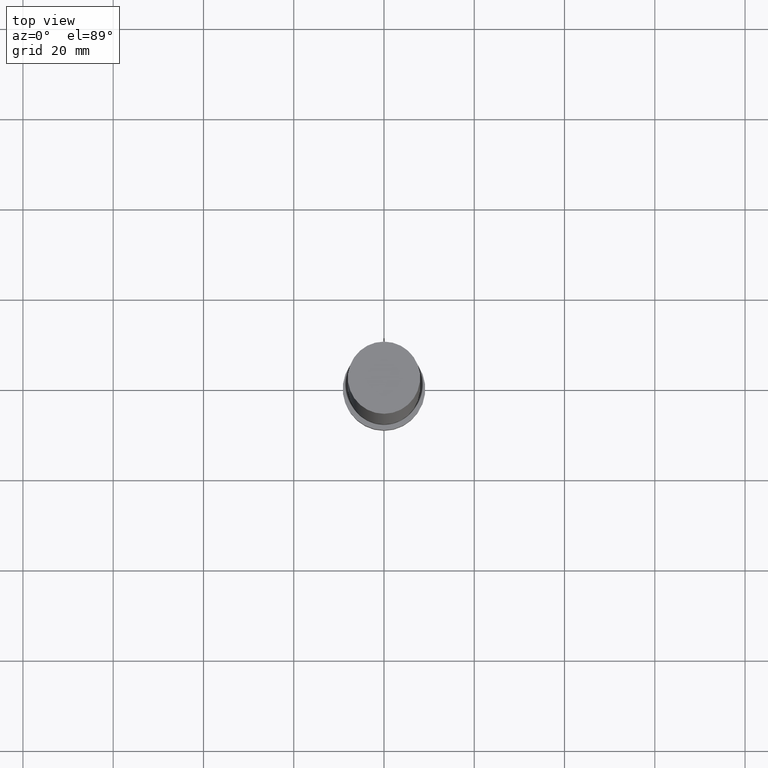
[diagram: clean part render]
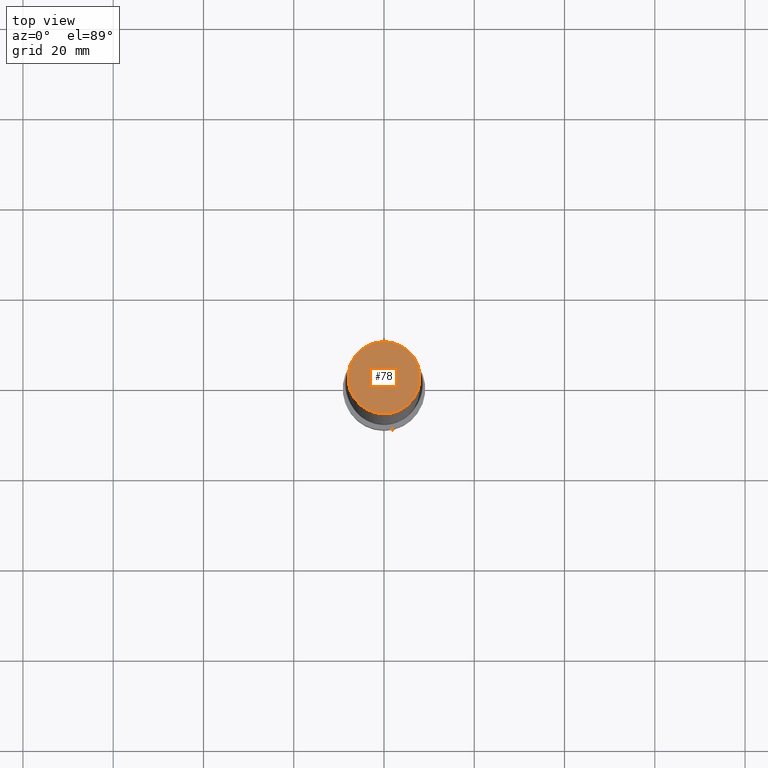
[diagram: same view with one face highlighted and labeled with its STEP entity id]
A machine part, top view. The second image highlights one B-rep face of the part: STEP entity #78.
In plain terms, the highlighted planar face has unit normal (-0, -0, 1).
Its self-contained STEP definition (entity closure, byte-faithful):
#78=ADVANCED_FACE('',(#91),#92,.T.);
#91=FACE_OUTER_BOUND('',#110,.T.);
#92=PLANE('',#111);
#110=EDGE_LOOP('',(#135));
#111=AXIS2_PLACEMENT_3D('',#136,#137,#138);
#135=ORIENTED_EDGE('',*,*,#157,.F.);
#136=CARTESIAN_POINT('',(-9.79717439317883E-015,3.99999999999996,160.0));
#137=DIRECTION('',(-6.12323399573677E-017,-1.22464679914735E-016,1.0));
#138=DIRECTION('',(1.23259516440783E-032,-1.0,-1.22464679914735E-016));
#157=EDGE_CURVE('',#166,#166,#167,.T.);
#166=VERTEX_POINT('',#178);
#167=CIRCLE('',#179,7.99999999999996);
#178=CARTESIAN_POINT('',(-9.79717439317883E-015,7.99999999999994,160.0));
#179=AXIS2_PLACEMENT_3D('',#193,#194,#195);
#193=CARTESIAN_POINT('',(-9.79717439317883E-015,-1.95943487863577E-014,160.0));
#194=DIRECTION('',(6.12323399573676E-017,1.22464679914735E-016,-1.0));
#195=DIRECTION('',(-1.23259516440783E-032,1.0,1.22464679914735E-016));